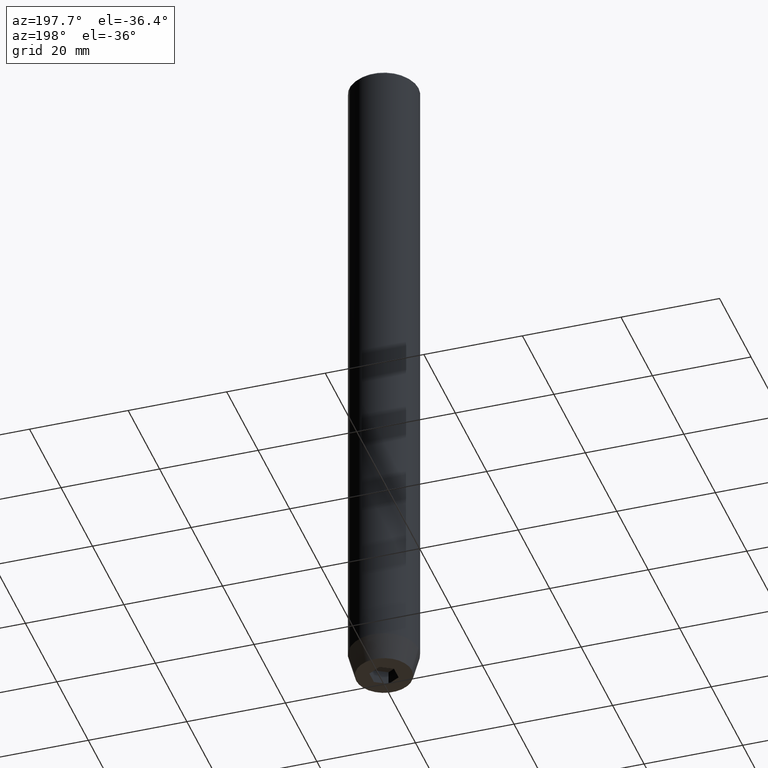
[diagram: clean part render]
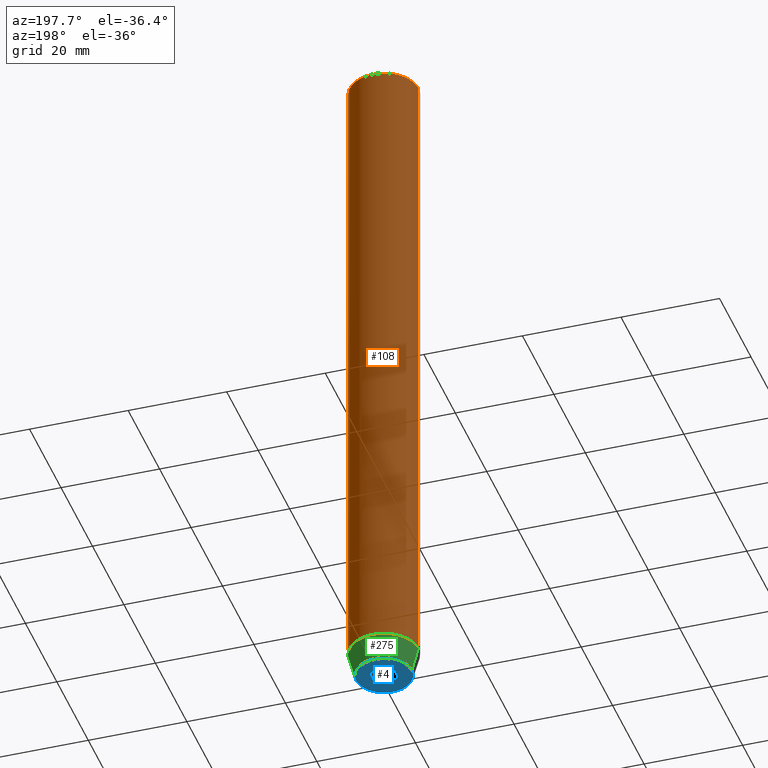
[diagram: same view with three faces highlighted in distinct colors, each labeled with its STEP entity id]
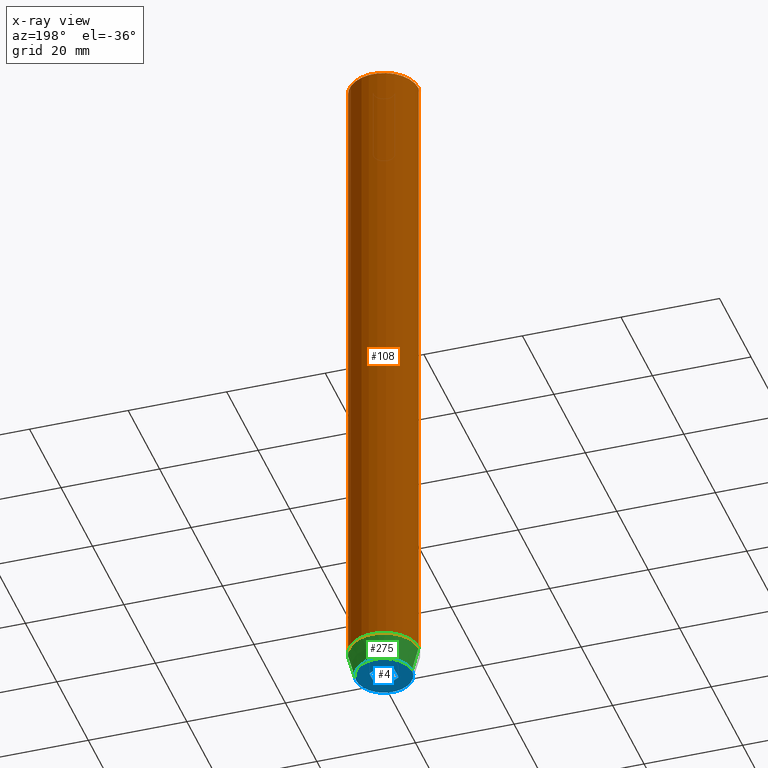
[diagram: x-ray of the same camera — body ghosted, the three highlighted faces saturated]
A machine part, auxiliary view with three faces highlighted in distinct colors.
The next image is the same camera in x-ray (body ghosted, the three faces saturated) — at least one of them is partly hidden behind the body in this view.
Their STEP definitions:

[orange] entity #108 — the highlighted cylindrical surface (edge-blend (fillet) strip) has radius 7 mm, axis along (-0, -0, 1).
#21 = ORIENTED_EDGE ( 'NONE', *, *, #570, .T. ) ;
#34 = CARTESIAN_POINT ( 'NONE',  ( 7.000000000000000000, 0.000000000000000000, -0.4999999999999908962 ) ) ;
#38 = EDGE_LOOP ( 'NONE', ( #21, #425, #372, #288 ) ) ;
#108 = ADVANCED_FACE ( 'NONE', ( #370 ), #268, .T. ) ;
#156 = LINE ( 'NONE', #518, #339 ) ;
#158 = VERTEX_POINT ( 'NONE', #316 ) ;
#197 = CARTESIAN_POINT ( 'NONE',  ( -7.000000000000000000, 8.572527594031473190E-16, -135.0000000000000000 ) ) ;
#211 = CARTESIAN_POINT ( 'NONE',  ( 0.000000000000000000, 0.000000000000000000, -135.0000000000000000 ) ) ;
#236 = DIRECTION ( 'NONE',  ( 1.000000000000000000, 0.000000000000000000, 0.000000000000000000 ) ) ;
#246 = DIRECTION ( 'NONE',  ( -0.000000000000000000, -0.000000000000000000, 1.000000000000000000 ) ) ;
#252 = EDGE_CURVE ( 'NONE', #585, #315, #384, .T. ) ;
#253 = LINE ( 'NONE', #428, #410 ) ;
#268 = CYLINDRICAL_SURFACE ( 'NONE', #386, 7.000000000000000000 ) ;
#284 = EDGE_CURVE ( 'NONE', #465, #585, #156, .T. ) ;
#287 = AXIS2_PLACEMENT_3D ( 'NONE', #211, #522, #329 ) ;
#288 = ORIENTED_EDGE ( 'NONE', *, *, #294, .F. ) ;
#293 = CARTESIAN_POINT ( 'NONE',  ( 0.000000000000000000, 0.000000000000000000, -0.4999999999999908962 ) ) ;
#294 = EDGE_CURVE ( 'NONE', #158, #315, #253, .T. ) ;
#315 = VERTEX_POINT ( 'NONE', #34 ) ;
#316 = CARTESIAN_POINT ( 'NONE',  ( 7.000000000000000000, 0.000000000000000000, -135.0000000000000000 ) ) ;
#329 = DIRECTION ( 'NONE',  ( 1.000000000000000000, 0.000000000000000000, 0.000000000000000000 ) ) ;
#339 = VECTOR ( 'NONE', #246, 1000.000000000000000 ) ;
#341 = DIRECTION ( 'NONE',  ( -0.000000000000000000, -0.000000000000000000, 1.000000000000000000 ) ) ;
#370 = FACE_OUTER_BOUND ( 'NONE', #38, .T. ) ;
#372 = ORIENTED_EDGE ( 'NONE', *, *, #252, .T. ) ;
#373 = CARTESIAN_POINT ( 'NONE',  ( 0.000000000000000000, 0.000000000000000000, 0.000000000000000000 ) ) ;
#384 = CIRCLE ( 'NONE', #421, 7.000000000000000000 ) ;
#386 = AXIS2_PLACEMENT_3D ( 'NONE', #373, #402, #236 ) ;
#402 = DIRECTION ( 'NONE',  ( -0.000000000000000000, -0.000000000000000000, 1.000000000000000000 ) ) ;
#410 = VECTOR ( 'NONE', #341, 1000.000000000000000 ) ;
#415 = DIRECTION ( 'NONE',  ( 0.000000000000000000, 0.000000000000000000, -1.000000000000000000 ) ) ;
#421 = AXIS2_PLACEMENT_3D ( 'NONE', #293, #415, #559 ) ;
#425 = ORIENTED_EDGE ( 'NONE', *, *, #284, .T. ) ;
#428 = CARTESIAN_POINT ( 'NONE',  ( 7.000000000000000000, 0.000000000000000000, 0.000000000000000000 ) ) ;
#446 = CARTESIAN_POINT ( 'NONE',  ( -7.000000000000000000, 8.572527594031473190E-16, -0.4999999999999908962 ) ) ;
#465 = VERTEX_POINT ( 'NONE', #197 ) ;
#494 = CIRCLE ( 'NONE', #287, 7.000000000000000000 ) ;
#518 = CARTESIAN_POINT ( 'NONE',  ( -7.000000000000000000, 8.572527594031473190E-16, 0.000000000000000000 ) ) ;
#522 = DIRECTION ( 'NONE',  ( -0.000000000000000000, -0.000000000000000000, 1.000000000000000000 ) ) ;
#559 = DIRECTION ( 'NONE',  ( 1.000000000000000000, 0.000000000000000000, 0.000000000000000000 ) ) ;
#570 = EDGE_CURVE ( 'NONE', #158, #465, #494, .T. ) ;
#585 = VERTEX_POINT ( 'NONE', #446 ) ;

[blue] entity #4 — the highlighted planar face has unit normal (0, 0, -1).
#4 = ADVANCED_FACE ( 'NONE', ( #519, #208 ), #248, .T. ) ;
#9 = CARTESIAN_POINT ( 'NONE',  ( 0.000000000000000000, 5.660254037844382857, -140.0000000000000000 ) ) ;
#28 = CARTESIAN_POINT ( 'NONE',  ( -2.500000000000000444, -1.443375672974064328, -140.0000000000000000 ) ) ;
#61 = CARTESIAN_POINT ( 'NONE',  ( -5.660254037844382857, 7.752169791919238770E-16, -140.0000000000000000 ) ) ;
#74 = VERTEX_POINT ( 'NONE', #28 ) ;
#90 = AXIS2_PLACEMENT_3D ( 'NONE', #9, #379, #382 ) ;
#93 = ORIENTED_EDGE ( 'NONE', *, *, #155, .F. ) ;
#112 = LINE ( 'NONE', #147, #168 ) ;
#118 = CARTESIAN_POINT ( 'NONE',  ( 1.249999999999999778, -2.165063509461096380, -140.0000000000000000 ) ) ;
#129 = VECTOR ( 'NONE', #350, 1000.000000000000000 ) ;
#132 = ORIENTED_EDGE ( 'NONE', *, *, #213, .F. ) ;
#143 = CARTESIAN_POINT ( 'NONE',  ( -2.500000000000000444, 0.000000000000000000, -140.0000000000000000 ) ) ;
#145 = VECTOR ( 'NONE', #184, 1000.000000000000000 ) ;
#147 = CARTESIAN_POINT ( 'NONE',  ( 1.250000000000000222, 2.165063509461096825, -140.0000000000000000 ) ) ;
#155 = EDGE_CURVE ( 'NONE', #74, #447, #230, .T. ) ;
#160 = EDGE_CURVE ( 'NONE', #278, #363, #470, .T. ) ;
#165 = LINE ( 'NONE', #118, #244 ) ;
#168 = VECTOR ( 'NONE', #512, 1000.000000000000000 ) ;
#183 = ORIENTED_EDGE ( 'NONE', *, *, #376, .F. ) ;
#184 = DIRECTION ( 'NONE',  ( 0.000000000000000000, 1.000000000000000000, 0.000000000000000000 ) ) ;
#191 = CARTESIAN_POINT ( 'NONE',  ( 0.000000000000000000, 0.000000000000000000, -140.0000000000000000 ) ) ;
#208 = FACE_OUTER_BOUND ( 'NONE', #393, .T. ) ;
#213 = EDGE_CURVE ( 'NONE', #237, #524, #112, .T. ) ;
#224 = CARTESIAN_POINT ( 'NONE',  ( 0.000000000000000000, 0.000000000000000000, -140.0000000000000000 ) ) ;
#230 = LINE ( 'NONE', #143, #145 ) ;
#237 = VERTEX_POINT ( 'NONE', #240 ) ;
#240 = CARTESIAN_POINT ( 'NONE',  ( 0.000000000000000000, 2.886751345948129099, -140.0000000000000000 ) ) ;
#244 = VECTOR ( 'NONE', #297, 999.9999999999998863 ) ;
#248 = PLANE ( 'NONE',  #90 ) ;
#249 = ORIENTED_EDGE ( 'NONE', *, *, #160, .F. ) ;
#264 = VERTEX_POINT ( 'NONE', #561 ) ;
#273 = VERTEX_POINT ( 'NONE', #419 ) ;
#278 = VERTEX_POINT ( 'NONE', #61 ) ;
#280 = CARTESIAN_POINT ( 'NONE',  ( 2.500000000000000000, 0.000000000000000000, -140.0000000000000000 ) ) ;
#297 = DIRECTION ( 'NONE',  ( -0.8660254037844387076, -0.5000000000000001110, 0.000000000000000000 ) ) ;
#299 = CARTESIAN_POINT ( 'NONE',  ( -1.250000000000000444, 2.165063509461097269, -140.0000000000000000 ) ) ;
#301 = EDGE_CURVE ( 'NONE', #264, #273, #165, .T. ) ;
#319 = LINE ( 'NONE', #371, #333 ) ;
#320 = CARTESIAN_POINT ( 'NONE',  ( 2.500000000000000000, 1.443375672974064328, -140.0000000000000000 ) ) ;
#333 = VECTOR ( 'NONE', #552, 1000.000000000000114 ) ;
#344 = ORIENTED_EDGE ( 'NONE', *, *, #527, .F. ) ;
#350 = DIRECTION ( 'NONE',  ( 0.8660254037844385966, 0.5000000000000001110, 0.000000000000000000 ) ) ;
#363 = VERTEX_POINT ( 'NONE', #438 ) ;
#366 = CARTESIAN_POINT ( 'NONE',  ( -2.500000000000000444, 1.443375672974064772, -140.0000000000000000 ) ) ;
#371 = CARTESIAN_POINT ( 'NONE',  ( -1.249999999999999556, -2.165063509461096825, -140.0000000000000000 ) ) ;
#376 = EDGE_CURVE ( 'NONE', #447, #237, #444, .T. ) ;
#379 = DIRECTION ( 'NONE',  ( 0.000000000000000000, 0.000000000000000000, -1.000000000000000000 ) ) ;
#382 = DIRECTION ( 'NONE',  ( -1.000000000000000000, 0.000000000000000000, -0.000000000000000000 ) ) ;
#391 = AXIS2_PLACEMENT_3D ( 'NONE', #224, #526, #476 ) ;
#393 = EDGE_LOOP ( 'NONE', ( #469, #249 ) ) ;
#395 = EDGE_CURVE ( 'NONE', #363, #278, #423, .T. ) ;
#404 = DIRECTION ( 'NONE',  ( 1.000000000000000000, 0.000000000000000000, 0.000000000000000000 ) ) ;
#406 = DIRECTION ( 'NONE',  ( 0.000000000000000000, -1.000000000000000000, 0.000000000000000000 ) ) ;
#419 = CARTESIAN_POINT ( 'NONE',  ( 0.000000000000000000, -2.886751345948128211, -140.0000000000000000 ) ) ;
#423 = CIRCLE ( 'NONE', #391, 5.660254037844382857 ) ;
#438 = CARTESIAN_POINT ( 'NONE',  ( 5.660254037844382857, 0.000000000000000000, -140.0000000000000000 ) ) ;
#444 = LINE ( 'NONE', #299, #129 ) ;
#447 = VERTEX_POINT ( 'NONE', #366 ) ;
#456 = AXIS2_PLACEMENT_3D ( 'NONE', #191, #505, #404 ) ;
#457 = ORIENTED_EDGE ( 'NONE', *, *, #301, .F. ) ;
#469 = ORIENTED_EDGE ( 'NONE', *, *, #395, .F. ) ;
#470 = CIRCLE ( 'NONE', #456, 5.660254037844382857 ) ;
#476 = DIRECTION ( 'NONE',  ( 1.000000000000000000, 0.000000000000000000, 0.000000000000000000 ) ) ;
#504 = EDGE_CURVE ( 'NONE', #273, #74, #319, .T. ) ;
#505 = DIRECTION ( 'NONE',  ( -0.000000000000000000, -0.000000000000000000, 1.000000000000000000 ) ) ;
#507 = LINE ( 'NONE', #280, #523 ) ;
#512 = DIRECTION ( 'NONE',  ( 0.8660254037844385966, -0.5000000000000001110, 0.000000000000000000 ) ) ;
#519 = FACE_BOUND ( 'NONE', #574, .T. ) ;
#523 = VECTOR ( 'NONE', #406, 1000.000000000000000 ) ;
#524 = VERTEX_POINT ( 'NONE', #320 ) ;
#526 = DIRECTION ( 'NONE',  ( -0.000000000000000000, -0.000000000000000000, 1.000000000000000000 ) ) ;
#527 = EDGE_CURVE ( 'NONE', #524, #264, #507, .T. ) ;
#534 = ORIENTED_EDGE ( 'NONE', *, *, #504, .F. ) ;
#552 = DIRECTION ( 'NONE',  ( -0.8660254037844387076, 0.4999999999999998890, 0.000000000000000000 ) ) ;
#561 = CARTESIAN_POINT ( 'NONE',  ( 2.500000000000000000, -1.443375672974064106, -140.0000000000000000 ) ) ;
#574 = EDGE_LOOP ( 'NONE', ( #183, #93, #534, #457, #344, #132 ) ) ;

[green] entity #275 — the highlighted conical surface has half-angle 15 deg.
#61 = CARTESIAN_POINT ( 'NONE',  ( -5.660254037844382857, 7.752169791919238770E-16, -140.0000000000000000 ) ) ;
#85 = VECTOR ( 'NONE', #408, 1000.000000000000114 ) ;
#98 = EDGE_LOOP ( 'NONE', ( #232, #411, #135, #365 ) ) ;
#104 = LINE ( 'NONE', #450, #85 ) ;
#105 = EDGE_CURVE ( 'NONE', #363, #158, #541, .T. ) ;
#109 = CARTESIAN_POINT ( 'NONE',  ( 0.000000000000000000, 0.000000000000000000, -135.0000000000000000 ) ) ;
#135 = ORIENTED_EDGE ( 'NONE', *, *, #570, .F. ) ;
#140 = DIRECTION ( 'NONE',  ( 0.2588190451025211836, 0.000000000000000000, 0.9659258262890680902 ) ) ;
#158 = VERTEX_POINT ( 'NONE', #316 ) ;
#197 = CARTESIAN_POINT ( 'NONE',  ( -7.000000000000000000, 8.572527594031473190E-16, -135.0000000000000000 ) ) ;
#211 = CARTESIAN_POINT ( 'NONE',  ( 0.000000000000000000, 0.000000000000000000, -135.0000000000000000 ) ) ;
#224 = CARTESIAN_POINT ( 'NONE',  ( 0.000000000000000000, 0.000000000000000000, -140.0000000000000000 ) ) ;
#232 = ORIENTED_EDGE ( 'NONE', *, *, #395, .T. ) ;
#275 = ADVANCED_FACE ( 'NONE', ( #422 ), #555, .T. ) ;
#278 = VERTEX_POINT ( 'NONE', #61 ) ;
#287 = AXIS2_PLACEMENT_3D ( 'NONE', #211, #522, #329 ) ;
#289 = DIRECTION ( 'NONE',  ( -0.000000000000000000, -0.000000000000000000, 1.000000000000000000 ) ) ;
#316 = CARTESIAN_POINT ( 'NONE',  ( 7.000000000000000000, 0.000000000000000000, -135.0000000000000000 ) ) ;
#329 = DIRECTION ( 'NONE',  ( 1.000000000000000000, 0.000000000000000000, 0.000000000000000000 ) ) ;
#363 = VERTEX_POINT ( 'NONE', #438 ) ;
#365 = ORIENTED_EDGE ( 'NONE', *, *, #105, .F. ) ;
#391 = AXIS2_PLACEMENT_3D ( 'NONE', #224, #526, #476 ) ;
#395 = EDGE_CURVE ( 'NONE', #363, #278, #423, .T. ) ;
#408 = DIRECTION ( 'NONE',  ( -0.2588190451025211836, 3.169619151431770488E-17, 0.9659258262890680902 ) ) ;
#411 = ORIENTED_EDGE ( 'NONE', *, *, #451, .T. ) ;
#422 = FACE_OUTER_BOUND ( 'NONE', #98, .T. ) ;
#423 = CIRCLE ( 'NONE', #391, 5.660254037844382857 ) ;
#438 = CARTESIAN_POINT ( 'NONE',  ( 5.660254037844382857, 0.000000000000000000, -140.0000000000000000 ) ) ;
#450 = CARTESIAN_POINT ( 'NONE',  ( -7.000000000000000000, 8.572527594031473190E-16, -135.0000000000000000 ) ) ;
#451 = EDGE_CURVE ( 'NONE', #278, #465, #104, .T. ) ;
#452 = CARTESIAN_POINT ( 'NONE',  ( 7.000000000000000000, 0.000000000000000000, -135.0000000000000000 ) ) ;
#465 = VERTEX_POINT ( 'NONE', #197 ) ;
#467 = DIRECTION ( 'NONE',  ( 1.000000000000000000, 0.000000000000000000, 0.000000000000000000 ) ) ;
#476 = DIRECTION ( 'NONE',  ( 1.000000000000000000, 0.000000000000000000, 0.000000000000000000 ) ) ;
#494 = CIRCLE ( 'NONE', #287, 7.000000000000000000 ) ;
#501 = AXIS2_PLACEMENT_3D ( 'NONE', #109, #289, #467 ) ;
#522 = DIRECTION ( 'NONE',  ( -0.000000000000000000, -0.000000000000000000, 1.000000000000000000 ) ) ;
#526 = DIRECTION ( 'NONE',  ( -0.000000000000000000, -0.000000000000000000, 1.000000000000000000 ) ) ;
#541 = LINE ( 'NONE', #452, #575 ) ;
#555 = CONICAL_SURFACE ( 'NONE', #501, 7.000000000000000000, 0.2617993877991499074 ) ;
#570 = EDGE_CURVE ( 'NONE', #158, #465, #494, .T. ) ;
#575 = VECTOR ( 'NONE', #140, 1000.000000000000114 ) ;